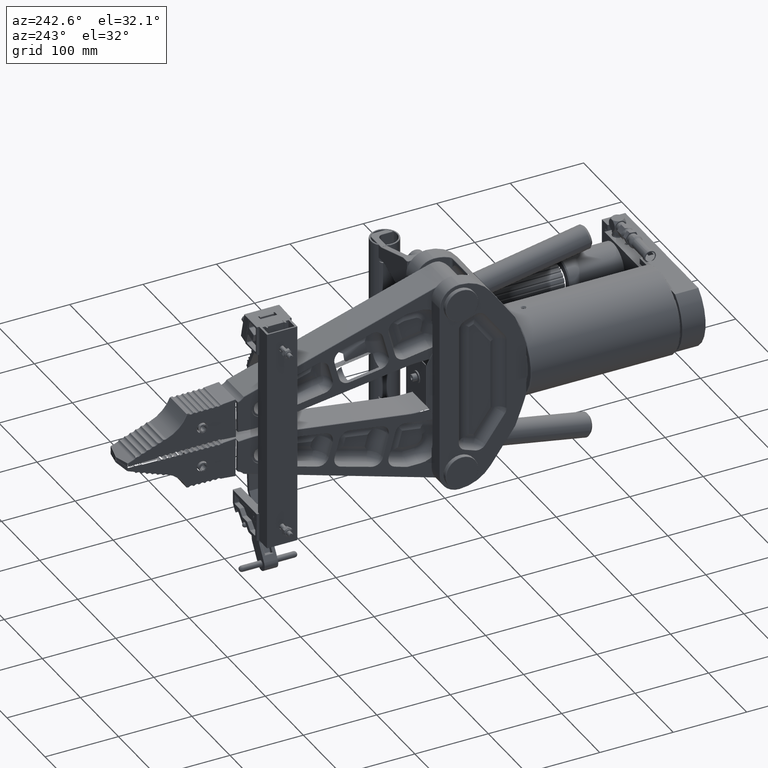
[diagram: clean part render]
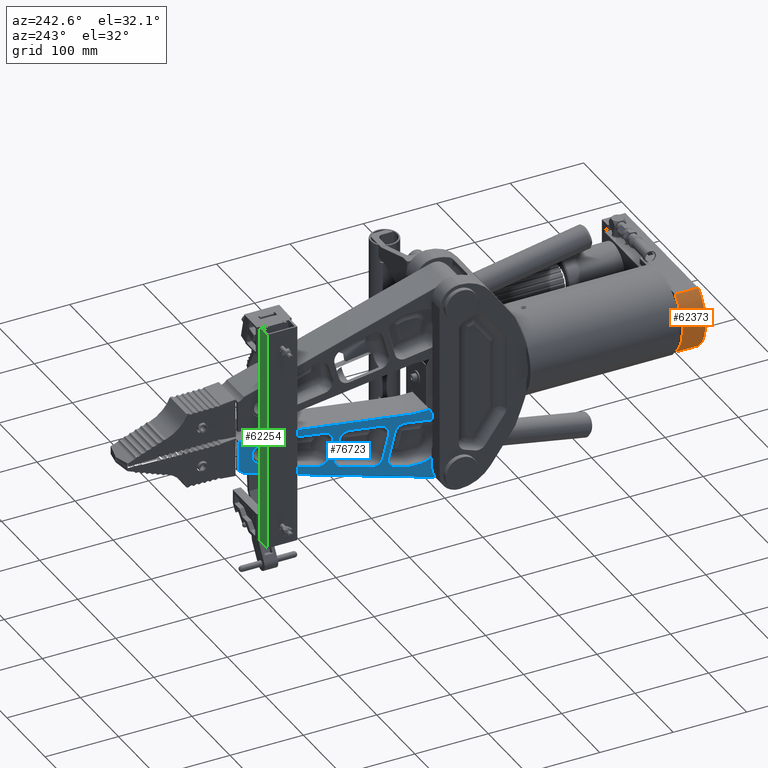
[diagram: same view with three faces highlighted in distinct colors, each labeled with its STEP entity id]
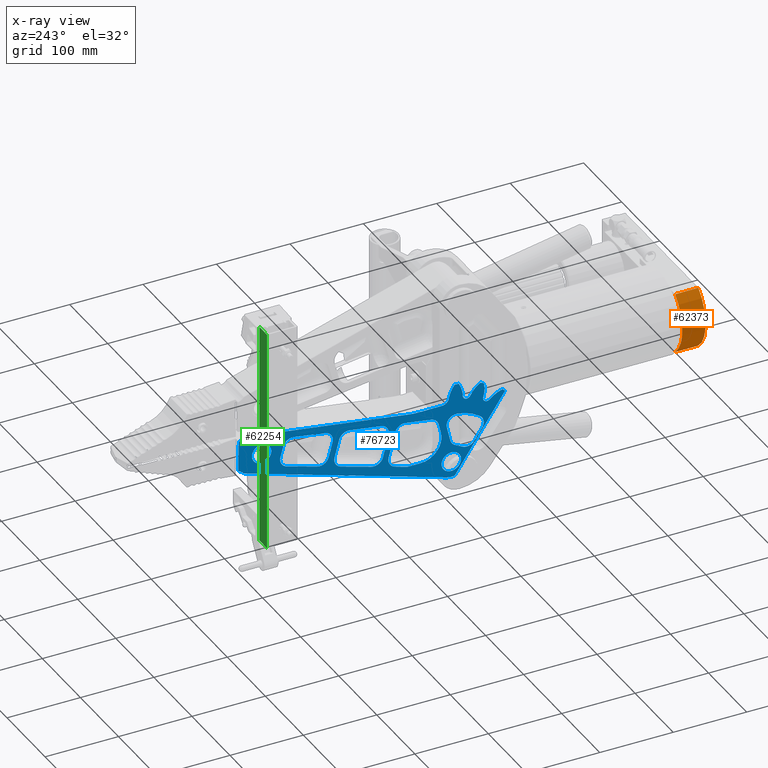
[diagram: x-ray of the same camera — body ghosted, the three highlighted faces saturated]
A machine part, auxiliary view with three faces highlighted in distinct colors.
The next image is the same camera in x-ray (body ghosted, the three faces saturated) — at least one of them is partly hidden behind the body in this view.
Their STEP definitions:

[orange] entity #62373 — the highlighted cylindrical surface (partial cylindrical patch) has radius 54.2413 mm, axis along (-0, -1, -0).
#13153 = LINE ( 'NONE', #15621, #13155 ) ;
#13155 = VECTOR ( 'NONE', #15622, 39.37007874015748100 ) ;
#13221 = CIRCLE ( 'NONE', #14673, 2.135483948496593500 ) ;
#13225 = LINE ( 'NONE', #15658, #13228 ) ;
#13228 = VECTOR ( 'NONE', #15659, 39.37007874015748100 ) ;
#13235 = CIRCLE ( 'NONE', #14676, 2.135483948496593500 ) ;
#14673 = AXIS2_PLACEMENT_3D ( 'NONE', #15643, #15651, #15652 ) ;
#14676 = AXIS2_PLACEMENT_3D ( 'NONE', #15660, #15661, #15662 ) ;
#15621 = CARTESIAN_POINT ( 'NONE',  ( -3.437499999999999600, 1.250000000000000000, -1.625000000000000200 ) ) ;
#15622 = DIRECTION ( 'NONE',  ( -0.0000000000000000000, -1.000000000000000000, -0.0000000000000000000 ) ) ;
#15643 = CARTESIAN_POINT ( 'NONE',  ( -2.051979630504624700, 1.250000000000000000, 5.463695987328526400E-016 ) ) ;
#15651 = DIRECTION ( 'NONE',  ( 0.0000000000000000000, 1.000000000000000000, 0.0000000000000000000 ) ) ;
#15652 = DIRECTION ( 'NONE',  ( 0.0000000000000000000, 0.0000000000000000000, 1.000000000000000000 ) ) ;
#15658 = CARTESIAN_POINT ( 'NONE',  ( -3.437500000000000900, 1.250000000000000000, 1.624999999999999100 ) ) ;
#15659 = DIRECTION ( 'NONE',  ( -0.0000000000000000000, -1.000000000000000000, -0.0000000000000000000 ) ) ;
#15660 = CARTESIAN_POINT ( 'NONE',  ( -2.051979630504624700, 0.0000000000000000000, 5.463695987328526400E-016 ) ) ;
#15661 = DIRECTION ( 'NONE',  ( 0.0000000000000000000, 1.000000000000000000, 0.0000000000000000000 ) ) ;
#15662 = DIRECTION ( 'NONE',  ( 0.0000000000000000000, 0.0000000000000000000, 1.000000000000000000 ) ) ;
#23509 = FACE_OUTER_BOUND ( 'NONE', #99170, .T. ) ;
#23516 = CYLINDRICAL_SURFACE ( 'NONE', #57611, 2.135483948496593500 ) ;
#51863 = CARTESIAN_POINT ( 'NONE',  ( -3.437499999999999600, 0.0000000000000000000, -1.625000000000000200 ) ) ;
#51865 = CARTESIAN_POINT ( 'NONE',  ( -3.437499999999999600, 1.250000000000000000, -1.625000000000000200 ) ) ;
#51869 = CARTESIAN_POINT ( 'NONE',  ( -3.437500000000000900, 0.0000000000000000000, 1.624999999999999100 ) ) ;
#51870 = CARTESIAN_POINT ( 'NONE',  ( -3.437500000000000900, 1.250000000000000000, 1.624999999999999100 ) ) ;
#56033 = DIRECTION ( 'NONE',  ( 0.0000000000000000000, 0.0000000000000000000, -1.000000000000000000 ) ) ;
#56037 = CARTESIAN_POINT ( 'NONE',  ( -2.051979630504624700, 1.250000000000000000, 5.463695987328526400E-016 ) ) ;
#56038 = DIRECTION ( 'NONE',  ( -0.0000000000000000000, -1.000000000000000000, -0.0000000000000000000 ) ) ;
#57611 = AXIS2_PLACEMENT_3D ( 'NONE', #56037, #56038, #56033 ) ;
#62373 = ADVANCED_FACE ( 'NONE', ( #23509 ), #23516, .T. ) ;
#85421 = EDGE_CURVE ( 'NONE', #101726, #101725, #13153, .T. ) ;
#85457 = EDGE_CURVE ( 'NONE', #101726, #101729, #13221, .T. ) ;
#85465 = EDGE_CURVE ( 'NONE', #101729, #101728, #13225, .T. ) ;
#85467 = EDGE_CURVE ( 'NONE', #101725, #101728, #13235, .T. ) ;
#88681 = ORIENTED_EDGE ( 'NONE', *, *, #85467, .T. ) ;
#88682 = ORIENTED_EDGE ( 'NONE', *, *, #85465, .F. ) ;
#88683 = ORIENTED_EDGE ( 'NONE', *, *, #85457, .F. ) ;
#88684 = ORIENTED_EDGE ( 'NONE', *, *, #85421, .T. ) ;
#99170 = EDGE_LOOP ( 'NONE', ( #88681, #88682, #88683, #88684 ) ) ;
#101725 = VERTEX_POINT ( 'NONE', #51863 ) ;
#101726 = VERTEX_POINT ( 'NONE', #51865 ) ;
#101728 = VERTEX_POINT ( 'NONE', #51869 ) ;
#101729 = VERTEX_POINT ( 'NONE', #51870 ) ;

[blue] entity #76723 — the highlighted planar face has unit normal (-1, 0, 0).
#2077 = CARTESIAN_POINT ( 'NONE',  ( -0.8860000000000096700, 10.41704320515888900, -1.629455447424948100 ) ) ;
#2083 = DIRECTION ( 'NONE',  ( 1.000000000000000000, -8.165371143497487400E-016, 4.585178834513534200E-016 ) ) ;
#2084 = DIRECTION ( 'NONE',  ( 8.195543980992785700E-016, 0.9999837526719138600, -0.005700385267379454200 ) ) ;
#2140 = CARTESIAN_POINT ( 'NONE',  ( -0.8860000000000104500, 12.39499562448233800, -2.406456614820206200 ) ) ;
#2146 = CARTESIAN_POINT ( 'NONE',  ( -0.8860000000000104500, 10.14265521364477300, -2.537094819704955700 ) ) ;
#2147 = DIRECTION ( 'NONE',  ( 3.548581005260366700E-016, -0.2588756287839597000, 0.9659106629609745000 ) ) ;
#2150 = DIRECTION ( 'NONE',  ( -1.040553004684048900E-016, -0.9590506295913239200, -0.2832346904609054900 ) ) ;
#2151 = CARTESIAN_POINT ( 'NONE',  ( -0.8860000000000104500, 10.62561054512526000, -2.407657005312974900 ) ) ;
#2152 = DIRECTION ( 'NONE',  ( -1.000000000000000000, 3.465903527919270300E-030, 3.673819061467125900E-016 ) ) ;
#2153 = DIRECTION ( 'NONE',  ( 0.0000000000000000000, -0.9999837526719138600, 0.005700385267379454200 ) ) ;
#2159 = CARTESIAN_POINT ( 'NONE',  ( -0.8860000000000103300, 12.25337733199813100, -1.926928092563231100 ) ) ;
#2160 = DIRECTION ( 'NONE',  ( -1.000000000000000000, 3.465903527919270300E-030, 3.673819061467125900E-016 ) ) ;
#2161 = DIRECTION ( 'NONE',  ( 0.0000000000000000000, -0.9999837526719137500, 0.005700385267379569500 ) ) ;
#2166 = CARTESIAN_POINT ( 'NONE',  ( -0.8860000000000100000, 12.58068690127753400, -1.231457179960419700 ) ) ;
#2170 = DIRECTION ( 'NONE',  ( -3.542314363509319200E-016, 0.2651582525308806000, -0.9642049061868384100 ) ) ;
#2205 = CARTESIAN_POINT ( 'NONE',  ( -0.8860000000000100000, 12.09858351559623400, -1.364036562689368500 ) ) ;
#2209 = DIRECTION ( 'NONE',  ( -1.000000000000000000, 3.465903527919270300E-030, 3.673819061467125900E-016 ) ) ;
#2210 = DIRECTION ( 'NONE',  ( 0.0000000000000000000, -0.9999837526719138600, 0.005700385267379107200 ) ) ;
#2222 = CARTESIAN_POINT ( 'NONE',  ( -0.8860000000000105600, 0.1745539631394053800, -2.740101702056419800 ) ) ;
#2231 = CARTESIAN_POINT ( 'NONE',  ( -0.8860000000000103300, 7.414298758362125600, -2.102346330432040700 ) ) ;
#2232 = DIRECTION ( 'NONE',  ( -1.000000000000000000, 3.465903527919270300E-030, 3.673819061467125900E-016 ) ) ;
#2233 = DIRECTION ( 'NONE',  ( 0.0000000000000000000, -0.9999837526719138600, 0.005700385267379454200 ) ) ;
#2235 = DIRECTION ( 'NONE',  ( 5.728344893127465100E-017, 0.9877691442210433400, 0.1559234354573665600 ) ) ;
#2242 = CARTESIAN_POINT ( 'NONE',  ( -0.8860000000000106700, 7.230755246549336800, -3.384760374024918100 ) ) ;
#2246 = DIRECTION ( 'NONE',  ( 3.555864809462139700E-016, -0.2513614604766806800, 0.9678932876030447200 ) ) ;
#2266 = CARTESIAN_POINT ( 'NONE',  ( -0.8860000000000106700, 7.714701890350862200, -3.259079643786577200 ) ) ;
#2267 = CARTESIAN_POINT ( 'NONE',  ( -0.8860000000000106700, 9.488688030411049500, -3.258046235212889400 ) ) ;
#2268 = DIRECTION ( 'NONE',  ( -1.000000000000000000, 3.465903527919270300E-030, 3.673819061467125900E-016 ) ) ;
#2269 = DIRECTION ( 'NONE',  ( 0.0000000000000000000, -0.9999837526719138600, 0.005700385267379429000 ) ) ;
#2275 = DIRECTION ( 'NONE',  ( -1.037523068507087600E-016, -0.9592938123652686700, -0.2824099530075178100 ) ) ;
#2299 = CARTESIAN_POINT ( 'NONE',  ( -0.8860000000000101100, 7.339435388786702300, -1.607982622322500900 ) ) ;
#2304 = DIRECTION ( 'NONE',  ( 5.500689483037336900E-017, 0.9887274162190780000, 0.1497267391508474400 ) ) ;
#2316 = CARTESIAN_POINT ( 'NONE',  ( -0.8860000000000101100, 9.100781983710156500, -1.846955785149524600 ) ) ;
#2317 = DIRECTION ( 'NONE',  ( 1.000000000000000000, -3.465903527919270300E-030, -3.673819061467125900E-016 ) ) ;
#2318 = DIRECTION ( 'NONE',  ( 0.0000000000000000000, 0.9999837526719139700, -0.005700385267379467200 ) ) ;
#2329 = CARTESIAN_POINT ( 'NONE',  ( -0.8860000000000105600, 9.347476531084817400, -2.778377172221784700 ) ) ;
#2330 = DIRECTION ( 'NONE',  ( -1.000000000000000000, 3.465903527919270300E-030, 3.673819061467125900E-016 ) ) ;
#2331 = DIRECTION ( 'NONE',  ( 0.0000000000000000000, -0.9999837526719138600, 0.005700385267379554800 ) ) ;
#2332 = CARTESIAN_POINT ( 'NONE',  ( -0.8860000000000101100, 9.584115363058007400, -1.718936863078639500 ) ) ;
#2335 = CARTESIAN_POINT ( 'NONE',  ( -0.8860000000000105600, 5.224370442037153100, -3.173466980917386800 ) ) ;
#2336 = DIRECTION ( 'NONE',  ( 1.000000000000000000, -3.465903527919270300E-030, -3.673819061467125900E-016 ) ) ;
#2337 = DIRECTION ( 'NONE',  ( 0.0000000000000000000, 0.9999837526719138600, -0.005700385267379092500 ) ) ;
#2339 = DIRECTION ( 'NONE',  ( -3.551343737978875200E-016, 0.2560532856645103500, -0.9666626686183803500 ) ) ;
#2342 = CARTESIAN_POINT ( 'NONE',  ( -0.8860000000000110000, 5.852947191558016900, -4.302068447318076100 ) ) ;
#2344 = DIRECTION ( 'NONE',  ( 2.094218405296982000E-018, -0.9999837526719138600, 0.005700385267379306700 ) ) ;
#2349 = CARTESIAN_POINT ( 'NONE',  ( -0.8860000000000101100, 4.736896754685052900, -2.516090829738059300 ) ) ;
#2355 = DIRECTION ( 'NONE',  ( 1.000000000000000000, -4.315645510953633200E-016, -3.649217819672807500E-016 ) ) ;
#2356 = DIRECTION ( 'NONE',  ( 5.463695987328517600E-016, 0.9999837526719138600, -0.005700385267379448100 ) ) ;
#2369 = CARTESIAN_POINT ( 'NONE',  ( -0.8860000000000160000, 6.023210846195133300, -1.809804727684291000 ) ) ;
#2370 = DIRECTION ( 'NONE',  ( 4.328895203578710000E-015, -0.9880966916352893500, -0.1538340923833074200 ) ) ;
#2415 = CARTESIAN_POINT ( 'NONE',  ( -0.8860000000000108900, 6.598951732809658700, -4.092396418954169100 ) ) ;
#2418 = CARTESIAN_POINT ( 'NONE',  ( -0.8860000000000106700, 5.855797384191706800, -3.802076570982118900 ) ) ;
#2419 = DIRECTION ( 'NONE',  ( -1.000000000000000000, 1.045040519042681500E-018, 5.507069782086362000E-016 ) ) ;
#2420 = DIRECTION ( 'NONE',  ( -5.463695987328525500E-016, -0.005700385267378363000, -0.9999837526719140800 ) ) ;
#2426 = CARTESIAN_POINT ( 'NONE',  ( -0.8860000000000110000, 6.448870838974283300, -3.615454286052743900 ) ) ;
#2427 = DIRECTION ( 'NONE',  ( -1.102744347426558900E-016, -0.9538879424165061000, -0.3001629446024348700 ) ) ;
#2429 = DIRECTION ( 'NONE',  ( -1.000000000000000000, 7.434802645742019300E-016, -9.671110136843914500E-018 ) ) ;
#2430 = DIRECTION ( 'NONE',  ( -8.195575569572243500E-016, -0.9999837526719138600, 0.005700385267378858300 ) ) ;
#2435 = CARTESIAN_POINT ( 'NONE',  ( -0.8860000000000101100, 6.584985137007483200, -2.175532903883917100 ) ) ;
#2439 = DIRECTION ( 'NONE',  ( -3.551534379076353800E-016, 0.2558573013771355800, -0.9667145604220562800 ) ) ;
#2458 = CARTESIAN_POINT ( 'NONE',  ( -0.8860000000000086700, 6.100128710583024200, -2.303858328884406800 ) ) ;
#2463 = DIRECTION ( 'NONE',  ( -1.000000000000000000, -3.281294629538398900E-015, -1.602942502634491100E-016 ) ) ;
#2464 = DIRECTION ( 'NONE',  ( 3.268081545471454600E-015, -0.9999837526719138600, 0.005700385267379162700 ) ) ;
#2745 = CARTESIAN_POINT ( 'NONE',  ( -0.8860000000000096700, 13.30184980943257700, -0.2986027694182549200 ) ) ;
#2747 = CARTESIAN_POINT ( 'NONE',  ( -0.8860000000000083400, 5.264722931397755300, 3.240993894944809400 ) ) ;
#2756 = DIRECTION ( 'NONE',  ( 1.000000000000000000, -3.465903527919270300E-030, -3.673819061467125900E-016 ) ) ;
#2757 = DIRECTION ( 'NONE',  ( 0.0000000000000000000, -0.9999837526719137500, 0.005700385267381956500 ) ) ;
#2759 = DIRECTION ( 'NONE',  ( 5.265628442878603900E-017, 0.9896751746478489300, 0.1433284643249537700 ) ) ;
#2768 = CARTESIAN_POINT ( 'NONE',  ( -0.8860000000000112200, 3.574499999999998700, -4.687500000000001800 ) ) ;
#2769 = DIRECTION ( 'NONE',  ( -1.000000000000000000, 3.465903527919270300E-030, 3.673819061467125900E-016 ) ) ;
#2770 = DIRECTION ( 'NONE',  ( 0.0000000000000000000, -0.9999837526719138600, 0.005700385267379143700 ) ) ;
#2773 = CARTESIAN_POINT ( 'NONE',  ( -0.8860000000000105600, 0.4628618356658137900, -2.897090056797513700 ) ) ;
#2774 = DIRECTION ( 'NONE',  ( -1.000000000000000000, 3.465903527919270300E-030, 3.673819061467125900E-016 ) ) ;
#2775 = DIRECTION ( 'NONE',  ( 0.0000000000000000000, -0.9999837526719137500, 0.005700385267379400400 ) ) ;
#2776 = CARTESIAN_POINT ( 'NONE',  ( -0.8860000000000096700, 14.98911995810388700, -0.2822334162787391600 ) ) ;
#2779 = CARTESIAN_POINT ( 'NONE',  ( -0.8860000000000117800, 14.15895402609580400, -6.216860313812392600 ) ) ;
#2780 = DIRECTION ( 'NONE',  ( -1.000000000000000000, 3.465903527919270300E-030, 3.673819061467125900E-016 ) ) ;
#2781 = DIRECTION ( 'NONE',  ( 0.0000000000000000000, -0.9999837526719138600, 0.005700385267379271200 ) ) ;
#2784 = CARTESIAN_POINT ( 'NONE',  ( -0.8860000000000103300, 14.99043899557910600, -1.949414393684547800 ) ) ;
#2785 = DIRECTION ( 'NONE',  ( -2.738704281701716500E-017, 0.9972175370868592300, -0.07454652055205929200 ) ) ;
#2789 = CARTESIAN_POINT ( 'NONE',  ( -0.8860000000000112200, 3.574499999999998700, -4.687500000000001800 ) ) ;
#2790 = DIRECTION ( 'NONE',  ( -3.673565331884714500E-016, 0.01175260581121532000, -0.9999309357433873200 ) ) ;
#2791 = CARTESIAN_POINT ( 'NONE',  ( -0.8860000000000104500, 15.19689781919129100, -2.545717347054689700 ) ) ;
#2796 = DIRECTION ( 'NONE',  ( 1.000000000000000000, -3.465903527919270300E-030, -3.673819061467125900E-016 ) ) ;
#2797 = DIRECTION ( 'NONE',  ( 0.0000000000000000000, -0.9999837526719139700, 0.005700385267372075500 ) ) ;
#2798 = CARTESIAN_POINT ( 'NONE',  ( -0.8860000000000115600, 3.826196951115806900, -5.502520027237988400 ) ) ;
#2799 = CARTESIAN_POINT ( 'NONE',  ( -0.8860000000000112200, 3.574499999999998700, -4.687500000000001800 ) ) ;
#2930 = LINE ( 'NONE', #2140, #2949 ) ;
#2932 = CIRCLE ( 'NONE', #88297, 0.5000000000000002200 ) ;
#2945 = LINE ( 'NONE', #2146, #2946 ) ;
#2946 = VECTOR ( 'NONE', #2147, 39.37007874015748900 ) ;
#2949 = VECTOR ( 'NONE', #2150, 39.37007874015748900 ) ;
#2953 = CIRCLE ( 'NONE', #88300, 0.5000000000000002200 ) ;
#2956 = LINE ( 'NONE', #2166, #2964 ) ;
#2959 = CIRCLE ( 'NONE', #88301, 0.5000033444129163800 ) ;
#2964 = VECTOR ( 'NONE', #2170, 39.37007874015748100 ) ;
#2972 = LINE ( 'NONE', #2242, #2995 ) ;
#2974 = VECTOR ( 'NONE', #2235, 39.37007874015748900 ) ;
#2976 = CIRCLE ( 'NONE', #88306, 0.5000009672092294900 ) ;
#2987 = LINE ( 'NONE', #2222, #2974 ) ;
#2988 = CIRCLE ( 'NONE', #88312, 0.5000000000000002200 ) ;
#2995 = VECTOR ( 'NONE', #2246, 39.37007874015748100 ) ;
#3006 = VECTOR ( 'NONE', #2275, 39.37007874015748900 ) ;
#3008 = CIRCLE ( 'NONE', #88317, 0.5000000000000024400 ) ;
#3009 = LINE ( 'NONE', #2299, #3020 ) ;
#3010 = LINE ( 'NONE', #2267, #3006 ) ;
#3020 = VECTOR ( 'NONE', #2304, 39.37007874015748900 ) ;
#3031 = CIRCLE ( 'NONE', #88321, 0.4999999999999991100 ) ;
#3037 = VECTOR ( 'NONE', #2339, 39.37007874015748900 ) ;
#3038 = CIRCLE ( 'NONE', #88322, 0.5000230969992558400 ) ;
#3039 = LINE ( 'NONE', #2342, #3047 ) ;
#3041 = LINE ( 'NONE', #2332, #3037 ) ;
#3042 = CIRCLE ( 'NONE', #88326, 1.125000000000000000 ) ;
#3047 = VECTOR ( 'NONE', #2344, 39.37007874015748900 ) ;
#3055 = CIRCLE ( 'NONE', #88329, 0.5000000000000007800 ) ;
#3062 = LINE ( 'NONE', #2369, #3063 ) ;
#3063 = VECTOR ( 'NONE', #2370, 39.37007874015748900 ) ;
#3085 = LINE ( 'NONE', #2435, #3098 ) ;
#3086 = LINE ( 'NONE', #2415, #3090 ) ;
#3087 = CIRCLE ( 'NONE', #88338, 0.5000000000000001100 ) ;
#3090 = VECTOR ( 'NONE', #2427, 39.37007874015748100 ) ;
#3094 = CIRCLE ( 'NONE', #88340, 0.4999980728272721600 ) ;
#3098 = VECTOR ( 'NONE', #2439, 39.37007874015748900 ) ;
#3104 = CIRCLE ( 'NONE', #88342, 0.5015507640774304900 ) ;
#3205 = VECTOR ( 'NONE', #2759, 39.37007874015748100 ) ;
#3214 = LINE ( 'NONE', #2745, #3205 ) ;
#3215 = CIRCLE ( 'NONE', #88365, 4.655000000000001100 ) ;
#3224 = CIRCLE ( 'NONE', #88357, 0.8529999999999994300 ) ;
#3227 = CIRCLE ( 'NONE', #88369, 1.534560999999999800 ) ;
#3228 = LINE ( 'NONE', #2784, #3234 ) ;
#3229 = LINE ( 'NONE', #2776, #3231 ) ;
#3230 = CIRCLE ( 'NONE', #88370, 5.979999999999999500 ) ;
#3231 = VECTOR ( 'NONE', #2785, 39.37007874015748900 ) ;
#3234 = VECTOR ( 'NONE', #2790, 39.37007874015748900 ) ;
#3235 = VECTOR ( 'NONE', #5933, 39.37007874015748900 ) ;
#3236 = LINE ( 'NONE', #2798, #3235 ) ;
#3237 = CIRCLE ( 'NONE', #88368, 0.6450000000000003500 ) ;
#3240 = VECTOR ( 'NONE', #5949, 39.37007874015748900 ) ;
#3241 = CIRCLE ( 'NONE', #88373, 4.277999999999999600 ) ;
#3242 = CIRCLE ( 'NONE', #88374, 0.5210000000000000200 ) ;
#3243 = CIRCLE ( 'NONE', #88371, 0.5210000000000000200 ) ;
#3244 = LINE ( 'NONE', #5942, #3240 ) ;
#3245 = CIRCLE ( 'NONE', #88375, 0.5200000000000031300 ) ;
#3246 = CIRCLE ( 'NONE', #88377, 0.08200000000000311200 ) ;
#3247 = CIRCLE ( 'NONE', #88372, 0.2075000000000005200 ) ;
#3248 = CIRCLE ( 'NONE', #88378, 0.08200000000000040600 ) ;
#3249 = CIRCLE ( 'NONE', #88379, 1.534560999999999800 ) ;
#3250 = CIRCLE ( 'NONE', #88380, 4.277999999999999600 ) ;
#3251 = CIRCLE ( 'NONE', #88381, 1.534560999999999800 ) ;
#3252 = CIRCLE ( 'NONE', #88382, 0.08200000000000311200 ) ;
#3253 = CIRCLE ( 'NONE', #88383, 0.2074999999999999600 ) ;
#3254 = LINE ( 'NONE', #5988, #3260 ) ;
#3255 = CIRCLE ( 'NONE', #88384, 0.08200000000000039200 ) ;
#3256 = LINE ( 'NONE', #6007, #3269 ) ;
#3257 = CIRCLE ( 'NONE', #88385, 1.534560999999999800 ) ;
#3258 = VECTOR ( 'NONE', #5998, 39.37007874015748900 ) ;
#3259 = CIRCLE ( 'NONE', #88386, 4.277999999999999600 ) ;
#3260 = VECTOR ( 'NONE', #5989, 39.37007874015748900 ) ;
#3261 = CIRCLE ( 'NONE', #88387, 1.534560999999999800 ) ;
#3262 = CIRCLE ( 'NONE', #88388, 0.3950000000000003000 ) ;
#3263 = LINE ( 'NONE', #5997, #3258 ) ;
#3264 = CIRCLE ( 'NONE', #88390, 0.5000000000000002200 ) ;
#3265 = CIRCLE ( 'NONE', #88376, 0.4999983095644903200 ) ;
#3266 = LINE ( 'NONE', #5999, #3267 ) ;
#3267 = VECTOR ( 'NONE', #6000, 39.37007874015748100 ) ;
#3268 = LINE ( 'NONE', #6011, #3271 ) ;
#3269 = VECTOR ( 'NONE', #6008, 39.37007874015748100 ) ;
#3270 = CIRCLE ( 'NONE', #88391, 2.595000000000001100 ) ;
#3271 = VECTOR ( 'NONE', #6012, 39.37007874015748900 ) ;
#3272 = CIRCLE ( 'NONE', #88392, 0.4999999999999903400 ) ;
#3274 = CIRCLE ( 'NONE', #88394, 0.4999987634587453900 ) ;
#3275 = LINE ( 'NONE', #6013, #3276 ) ;
#3276 = VECTOR ( 'NONE', #6014, 39.37007874015748900 ) ;
#5933 = DIRECTION ( 'NONE',  ( -1.084043442816460200E-016, -0.9554748267737229700, -0.2950726273338890000 ) ) ;
#5936 = DIRECTION ( 'NONE',  ( -1.000000000000000000, 3.465903527919270300E-030, 3.673819061467125900E-016 ) ) ;
#5937 = DIRECTION ( 'NONE',  ( 0.0000000000000000000, -0.9999837526719138600, 0.005700385267379246900 ) ) ;
#5938 = CARTESIAN_POINT ( 'NONE',  ( -0.8860000000000100000, 13.74392731378390800, -1.308414752530533900 ) ) ;
#5939 = DIRECTION ( 'NONE',  ( 1.000000000000000000, -3.465903527919270300E-030, -3.673819061467125900E-016 ) ) ;
#5940 = DIRECTION ( 'NONE',  ( 0.0000000000000000000, -0.9999837526719137500, 0.005700385267379081200 ) ) ;
#5941 = CARTESIAN_POINT ( 'NONE',  ( -0.8860000000000112200, 3.574499999999998700, -4.687500000000001800 ) ) ;
#5942 = CARTESIAN_POINT ( 'NONE',  ( -0.8860000000000171100, 7.990809163513217700, -12.32432088430591000 ) ) ;
#5943 = DIRECTION ( 'NONE',  ( 1.000000000000000000, -3.465903527919270300E-030, -3.673819061467125900E-016 ) ) ;
#5944 = DIRECTION ( 'NONE',  ( 0.0000000000000000000, -0.9999837526719137500, 0.005700385267379081200 ) ) ;
#5945 = CARTESIAN_POINT ( 'NONE',  ( -0.8860000000000101100, 1.658491663312799300, -1.627332961463517500 ) ) ;
#5946 = DIRECTION ( 'NONE',  ( 1.000000000000000000, -3.465903527919270300E-030, -3.673819061467125900E-016 ) ) ;
#5947 = DIRECTION ( 'NONE',  ( 0.0000000000000000000, -0.9999837526719138600, 0.005700385267379989300 ) ) ;
#5948 = CARTESIAN_POINT ( 'NONE',  ( -0.8860000000000101100, 1.584609295362508800, -1.733065957654798700 ) ) ;
#5949 = DIRECTION ( 'NONE',  ( 5.185670463346929000E-016, -0.5604950936232989700, 0.8281577446502624800 ) ) ;
#5950 = CARTESIAN_POINT ( 'NONE',  ( -0.8860000000000101100, 1.785875715334432700, -1.607050587174502000 ) ) ;
#5951 = DIRECTION ( 'NONE',  ( 1.000000000000000000, -3.465903527919270300E-030, -3.673819061467125900E-016 ) ) ;
#5952 = DIRECTION ( 'NONE',  ( 0.0000000000000000000, -0.9999837526719139700, 0.005700385267381665900 ) ) ;
#5953 = CARTESIAN_POINT ( 'NONE',  ( -0.8860000000000098900, 3.322943139596565800, -1.106357867042512300 ) ) ;
#5954 = DIRECTION ( 'NONE',  ( 1.000000000000000000, -3.465903527919270300E-030, -3.673819061467125900E-016 ) ) ;
#5955 = DIRECTION ( 'NONE',  ( 0.0000000000000000000, -0.9999837526719138600, 0.005700385267380534900 ) ) ;
#5956 = CARTESIAN_POINT ( 'NONE',  ( -0.8860000000000112200, 3.574499999999998700, -4.687500000000001800 ) ) ;
#5957 = DIRECTION ( 'NONE',  ( 1.000000000000000000, -3.465903527919270300E-030, -3.673819061467125900E-016 ) ) ;
#5958 = DIRECTION ( 'NONE',  ( 0.0000000000000000000, -0.9999837526719137500, 0.005700385267385185700 ) ) ;
#5959 = CARTESIAN_POINT ( 'NONE',  ( -0.8860000000000103300, 1.203504484921589500, -1.991903572873452200 ) ) ;
#5960 = DIRECTION ( 'NONE',  ( -1.000000000000000000, 3.465903527919270300E-030, 3.673819061467125900E-016 ) ) ;
#5961 = DIRECTION ( 'NONE',  ( 0.0000000000000000000, -0.9999837526719137500, 0.005700385267379311100 ) ) ;
#5962 = CARTESIAN_POINT ( 'NONE',  ( -0.8860000000000100000, 2.639884236221415700, -1.250227985586903200 ) ) ;
#5963 = DIRECTION ( 'NONE',  ( -1.000000000000000000, 3.465903527919270300E-030, 3.673819061467125900E-016 ) ) ;
#5964 = DIRECTION ( 'NONE',  ( 0.0000000000000000000, -0.9999837526719138600, 0.005700385267379246900 ) ) ;
#5965 = CARTESIAN_POINT ( 'NONE',  ( -0.8860000000000100000, 2.743832434232616400, -1.173854934660861100 ) ) ;
#5966 = DIRECTION ( 'NONE',  ( -1.000000000000000000, 3.465903527919270300E-030, 3.673819061467125900E-016 ) ) ;
#5967 = DIRECTION ( 'NONE',  ( 0.0000000000000000000, -0.9999837526719137500, 0.005700385267379222600 ) ) ;
#5968 = CARTESIAN_POINT ( 'NONE',  ( -0.8860000000000100000, 2.870975786655612700, -1.195595204918878900 ) ) ;
#5969 = DIRECTION ( 'NONE',  ( 1.000000000000000000, -3.465903527919270300E-030, -3.673819061467125900E-016 ) ) ;
#5970 = DIRECTION ( 'NONE',  ( 0.0000000000000000000, -0.9999837526719139700, 0.005700385267381665900 ) ) ;
#5971 = CARTESIAN_POINT ( 'NONE',  ( -0.8860000000000100000, 4.487413641995275700, -1.215548313596766200 ) ) ;
#5972 = DIRECTION ( 'NONE',  ( 1.000000000000000000, -3.465903527919270300E-030, -3.673819061467125900E-016 ) ) ;
#5973 = DIRECTION ( 'NONE',  ( 0.0000000000000000000, -0.9999837526719138600, 0.005700385267377258900 ) ) ;
#5974 = CARTESIAN_POINT ( 'NONE',  ( -0.8860000000000112200, 3.574499999999998700, -4.687500000000001800 ) ) ;
#5975 = DIRECTION ( 'NONE',  ( 1.000000000000000000, -3.465903527919270300E-030, -3.673819061467125900E-016 ) ) ;
#5976 = DIRECTION ( 'NONE',  ( 0.0000000000000000000, -0.9999837526719139700, 0.005700385267378523500 ) ) ;
#5977 = CARTESIAN_POINT ( 'NONE',  ( -0.8860000000000100000, 2.195803984083159600, -1.372826995591515300 ) ) ;
#5978 = DIRECTION ( 'NONE',  ( -1.000000000000000000, 3.465903527919270300E-030, 3.673819061467125900E-016 ) ) ;
#5979 = DIRECTION ( 'NONE',  ( 0.0000000000000000000, -0.9999837526719139700, 0.005700385267379311100 ) ) ;
#5980 = CARTESIAN_POINT ( 'NONE',  ( -0.8860000000000098900, 4.083458088317313700, -1.012341545683183700 ) ) ;
#5981 = DIRECTION ( 'NONE',  ( -1.000000000000000000, 3.465903527919270300E-030, 3.673819061467125900E-016 ) ) ;
#5982 = DIRECTION ( 'NONE',  ( 0.0000000000000000000, -0.9999837526719138600, 0.005700385267379246900 ) ) ;
#5983 = CARTESIAN_POINT ( 'NONE',  ( -0.8860000000000104500, 3.324514968558325700, -2.579040732180224900 ) ) ;
#5984 = DIRECTION ( 'NONE',  ( -1.000000000000000000, 3.465903527919270300E-030, 3.673819061467125900E-016 ) ) ;
#5985 = DIRECTION ( 'NONE',  ( 0.0000000000000000000, -0.9999837526719137500, 0.005700385267379222600 ) ) ;
#5986 = DIRECTION ( 'NONE',  ( 1.000000000000000000, -3.465903527919270300E-030, -3.673819061467125900E-016 ) ) ;
#5987 = DIRECTION ( 'NONE',  ( 0.0000000000000000000, -0.9999837526719139700, 0.005700385267379161900 ) ) ;
#5988 = CARTESIAN_POINT ( 'NONE',  ( -0.8860000000000100000, 5.238187637978104900, -1.413930473742948300 ) ) ;
#5989 = DIRECTION ( 'NONE',  ( -2.094218405296982000E-018, 0.9999837526719138600, -0.005700385267379306700 ) ) ;
#5990 = CARTESIAN_POINT ( 'NONE',  ( -0.8860000000000112200, 3.571727592763242600, -4.659403902021905400 ) ) ;
#5991 = DIRECTION ( 'NONE',  ( 1.000000000000000000, -3.465903527919270300E-030, -3.673819061467125900E-016 ) ) ;
#5992 = DIRECTION ( 'NONE',  ( 0.0000000000000000000, 0.9999837526719138600, -0.005700385267379454200 ) ) ;
#5993 = CARTESIAN_POINT ( 'NONE',  ( -0.8860000000000106700, 3.140060191798291100, -3.360001957421533600 ) ) ;
#5994 = CARTESIAN_POINT ( 'NONE',  ( -0.8860000000000197700, 2.332268000461976200, -2.970390900576263000 ) ) ;
#5995 = DIRECTION ( 'NONE',  ( 1.000000000000000000, -3.465903527919270300E-030, -3.673819061467125900E-016 ) ) ;
#5996 = DIRECTION ( 'NONE',  ( 0.0000000000000000000, 0.9999837526719138600, -0.005700385267379297200 ) ) ;
#5997 = CARTESIAN_POINT ( 'NONE',  ( -0.8860000000000110000, 3.374269238684180400, -3.801753507417854100 ) ) ;
#5998 = DIRECTION ( 'NONE',  ( -1.720872932450940100E-016, -0.8835084259337777600, -0.4684152658742223900 ) ) ;
#5999 = CARTESIAN_POINT ( 'NONE',  ( -0.8860000000000108900, 3.626669582206529800, -3.474935028092554800 ) ) ;
#6000 = DIRECTION ( 'NONE',  ( 3.610726307495986900E-016, 0.2298669184924438100, 0.9732220711547741000 ) ) ;
#6001 = CARTESIAN_POINT ( 'NONE',  ( -0.8860000000000175500, 2.738841107897076900, -3.572718310139019000 ) ) ;
#6002 = DIRECTION ( 'NONE',  ( 1.000000000000000000, -3.465903527919270300E-030, -3.673819061467125900E-016 ) ) ;
#6003 = DIRECTION ( 'NONE',  ( 0.0000000000000000000, 0.9999837526719138600, -0.005700385267379283300 ) ) ;
#6005 = DIRECTION ( 'NONE',  ( -1.000000000000000000, -1.064866103640459200E-014, 1.506322211083181000E-014 ) ) ;
#6006 = DIRECTION ( 'NONE',  ( -1.502516396515373900E-014, -0.005700385267379566900, -0.9999837526719139700 ) ) ;
#6007 = CARTESIAN_POINT ( 'NONE',  ( -0.8860000000000239900, 2.324418943681870500, -3.852455746438594500 ) ) ;
#6008 = DIRECTION ( 'NONE',  ( 1.832985111581487000E-014, -0.5594762562300944500, 0.8288463782358934700 ) ) ;
#6009 = DIRECTION ( 'NONE',  ( -1.000000000000000000, 1.237464427652083400E-016, 2.207546415179464600E-014 ) ) ;
#6010 = DIRECTION ( 'NONE',  ( -2.212802347310834900E-014, -0.005700385267379102000, -0.9999837526719139700 ) ) ;
#6011 = CARTESIAN_POINT ( 'NONE',  ( -0.8860000000000104500, 4.129236998592995500, -2.915964085690670800 ) ) ;
#6012 = DIRECTION ( 'NONE',  ( 3.576286328333589200E-016, 0.2288914624237472200, 0.9734519497281406400 ) ) ;
#6013 = CARTESIAN_POINT ( 'NONE',  ( -0.8860000000000104500, 6.100128710583024200, -2.303858328884406800 ) ) ;
#6014 = DIRECTION ( 'NONE',  ( 3.925825759297963600E-015, -0.1538376537935923500, 0.9880961371624132900 ) ) ;
#15235 = AXIS2_PLACEMENT_3D ( 'NONE', #29975, #29982, #29983 ) ;
#27214 = CARTESIAN_POINT ( 'NONE',  ( -0.8860000000000100000, 14.26391886517330400, -1.311378952869571200 ) ) ;
#27216 = CARTESIAN_POINT ( 'NONE',  ( -0.8860000000000100000, 13.22393576239451300, -1.305450552191496300 ) ) ;
#27233 = CARTESIAN_POINT ( 'NONE',  ( -0.8860000000000103300, 6.914306882026168400, -2.099496137798351200 ) ) ;
#27235 = CARTESIAN_POINT ( 'NONE',  ( -0.8860000000000101100, 7.339435388786702300, -1.607982622322500200 ) ) ;
#27460 = CARTESIAN_POINT ( 'NONE',  ( -0.8860000000000097800, 10.34327386562461200, -1.134927304095696400 ) ) ;
#27463 = CARTESIAN_POINT ( 'NONE',  ( -0.8860000000000101100, 9.934087873678404200, -1.758893261816926000 ) ) ;
#27465 = CARTESIAN_POINT ( 'NONE',  ( -0.8860000000000104500, 10.14265521364477300, -2.537094819704954800 ) ) ;
#27468 = CARTESIAN_POINT ( 'NONE',  ( -0.8860000000000105600, 10.76722789035571600, -2.887182320108637500 ) ) ;
#27473 = CARTESIAN_POINT ( 'NONE',  ( -0.8860000000000104500, 12.39499562448234100, -2.406456614820205800 ) ) ;
#27475 = CARTESIAN_POINT ( 'NONE',  ( -0.8860000000000101100, 12.73548300979089600, -1.794348079499105400 ) ) ;
#27483 = CARTESIAN_POINT ( 'NONE',  ( -0.8860000000000100000, 12.58068690127753400, -1.231457179960418600 ) ) ;
#27505 = CARTESIAN_POINT ( 'NONE',  ( -0.8860000000000098900, 12.02062164705696300, -0.8701510351994125000 ) ) ;
#27511 = CARTESIAN_POINT ( 'NONE',  ( -0.8860000000000103300, 6.930352114560602000, -2.228027060670380700 ) ) ;
#27515 = CARTESIAN_POINT ( 'NONE',  ( -0.8860000000000106700, 7.230755246549337700, -3.384760374024918100 ) ) ;
#27525 = CARTESIAN_POINT ( 'NONE',  ( -0.8860000000000108900, 7.855906866854623700, -3.738726549969212200 ) ) ;
#27529 = CARTESIAN_POINT ( 'NONE',  ( -0.8860000000000106700, 9.488688030411051200, -3.258046235212888900 ) ) ;
#27541 = CARTESIAN_POINT ( 'NONE',  ( -0.8860000000000100000, 9.025918614134731400, -1.352592077039984600 ) ) ;
#27543 = CARTESIAN_POINT ( 'NONE',  ( -0.8860000000000101100, 9.584115363058007400, -1.718936863078639500 ) ) ;
#27549 = CARTESIAN_POINT ( 'NONE',  ( -0.8860000000000105600, 9.830832237439604900, -2.650352336088351200 ) ) ;
#27551 = CARTESIAN_POINT ( 'NONE',  ( -0.8860000000000110000, 5.217957508611352300, -4.298448702673290700 ) ) ;
#27557 = CARTESIAN_POINT ( 'NONE',  ( -0.8860000000000110000, 5.852947191558016900, -4.302068447318076100 ) ) ;
#27561 = CARTESIAN_POINT ( 'NONE',  ( -0.8860000000000104500, 4.129236998592995500, -2.915964085690670800 ) ) ;
#27567 = CARTESIAN_POINT ( 'NONE',  ( -0.8860000000000122200, 6.023209065470551200, -1.809805004920467900 ) ) ;
#27571 = CARTESIAN_POINT ( 'NONE',  ( -0.8860000000000101100, 4.659979708493395400, -2.022042483920414300 ) ) ;
#27575 = CARTESIAN_POINT ( 'NONE',  ( -0.8860000000000103300, 4.250170779820981800, -2.401645098526185200 ) ) ;
#27591 = CARTESIAN_POINT ( 'NONE',  ( -0.8860000000000110000, 6.005878856492925500, -4.279020542190371800 ) ) ;
#27595 = CARTESIAN_POINT ( 'NONE',  ( -0.8860000000000108900, 6.598951732809659600, -4.092396418954168200 ) ) ;
#27597 = CARTESIAN_POINT ( 'NONE',  ( -0.8860000000000106700, 6.932226256159374600, -3.487526128445389300 ) ) ;
#27603 = CARTESIAN_POINT ( 'NONE',  ( -0.8860000000000101100, 6.584985137007483200, -2.175532903883915300 ) ) ;
#27611 = CARTESIAN_POINT ( 'NONE',  ( -0.8860000000000083400, 6.022971317778968500, -1.808277956308640000 ) ) ;
#27719 = CARTESIAN_POINT ( 'NONE',  ( -0.8860000000000100000, 5.238187637978104900, -1.413930473742948800 ) ) ;
#27720 = CARTESIAN_POINT ( 'NONE',  ( -0.8860000000000100000, 5.931916932830414900, -1.365944043040928900 ) ) ;
#27721 = CARTESIAN_POINT ( 'NONE',  ( -0.8860000000000096700, 13.30184980943257700, -0.2986027694182549200 ) ) ;
#27722 = CARTESIAN_POINT ( 'NONE',  ( -0.8860000000000096700, 14.60474221899711500, -0.2534994420329759200 ) ) ;
#27723 = CARTESIAN_POINT ( 'NONE',  ( -0.8860000000000096700, 14.97082784958370800, -0.2808659984455919600 ) ) ;
#27724 = CARTESIAN_POINT ( 'NONE',  ( -0.8860000000000103300, 14.99026618419247100, -1.934711318101033800 ) ) ;
#27725 = CARTESIAN_POINT ( 'NONE',  ( -0.8860000000000103300, 14.68931766733463500, -2.147738215137985600 ) ) ;
#27726 = CARTESIAN_POINT ( 'NONE',  ( -0.8860000000000115600, 3.826196951115806900, -5.502520027237988400 ) ) ;
#27727 = CARTESIAN_POINT ( 'NONE',  ( -0.8860000000000112200, 3.053508464857931600, -4.684530099275697500 ) ) ;
#27728 = CARTESIAN_POINT ( 'NONE',  ( -0.8860000000000112200, 4.095491535142065800, -4.690469900724306000 ) ) ;
#27729 = CARTESIAN_POINT ( 'NONE',  ( -0.8860000000000127800, 3.385129699572077200, -5.519213826574884700 ) ) ;
#27730 = CARTESIAN_POINT ( 'NONE',  ( -0.8860000000000103300, 0.6863219167571976700, -1.531598962344361800 ) ) ;
#27731 = CARTESIAN_POINT ( 'NONE',  ( -0.8860000000000100000, 0.8288819378497801500, -1.406819360743191100 ) ) ;
#27732 = CARTESIAN_POINT ( 'NONE',  ( -0.8860000000000101100, 1.527708694831426700, -1.792111039238303700 ) ) ;
#27733 = CARTESIAN_POINT ( 'NONE',  ( -0.8860000000000101100, 1.565420455286537400, -1.812789156389792900 ) ) ;
#27734 = CARTESIAN_POINT ( 'NONE',  ( -0.8860000000000101100, 1.865973783698136500, -1.624609045090944300 ) ) ;
#27735 = CARTESIAN_POINT ( 'NONE',  ( -0.8860000000000101100, 1.863843406494553000, -1.581652966515075100 ) ) ;
#27736 = CARTESIAN_POINT ( 'NONE',  ( -0.8860000000000098900, 1.822466942988870900, -0.7847235309794866600 ) ) ;
#27737 = CARTESIAN_POINT ( 'NONE',  ( -0.8860000000000097800, 2.029131763377138000, -0.6983746556121942500 ) ) ;
#27738 = CARTESIAN_POINT ( 'NONE',  ( -0.8860000000000100000, 2.567023923739185900, -1.287849453726680000 ) ) ;
#27739 = CARTESIAN_POINT ( 'NONE',  ( -0.8860000000000100000, 2.596087563029779900, -1.319552233994985900 ) ) ;
#27740 = CARTESIAN_POINT ( 'NONE',  ( -0.8860000000000100000, 2.941179079579351100, -1.237968518014078900 ) ) ;
#27741 = CARTESIAN_POINT ( 'NONE',  ( -0.8860000000000100000, 2.952969540147038600, -1.196607325656411800 ) ) ;
#27742 = CARTESIAN_POINT ( 'NONE',  ( -0.8860000000000097800, 3.169953491844463800, -0.4286708037608332700 ) ) ;
#27743 = CARTESIAN_POINT ( 'NONE',  ( -0.8860000000000097800, 3.393406573304400500, -0.4133346813901052100 ) ) ;
#27744 = CARTESIAN_POINT ( 'NONE',  ( -0.8860000000000098900, 3.688482740382817800, -1.016754540587336400 ) ) ;
#27745 = CARTESIAN_POINT ( 'NONE',  ( -0.8860000000000100000, 4.081206436136699100, -1.407335127988590400 ) ) ;
#27746 = CARTESIAN_POINT ( 'NONE',  ( -0.8860000000000110000, 3.374269238684180400, -3.801753507417854100 ) ) ;
#27747 = CARTESIAN_POINT ( 'NONE',  ( -0.8860000000000110000, 2.973048994383615800, -4.014470989098391800 ) ) ;
#27748 = CARTESIAN_POINT ( 'NONE',  ( -0.8860000000000108900, 3.626669582206529800, -3.474935028092554400 ) ) ;
#27749 = CARTESIAN_POINT ( 'NONE',  ( -0.8860000000000105600, 3.811126004135713300, -2.693974191426447900 ) ) ;
#27750 = CARTESIAN_POINT ( 'NONE',  ( -0.8860000000000103300, 3.265514342256436600, -2.082534009067651800 ) ) ;
#27751 = CARTESIAN_POINT ( 'NONE',  ( -0.8860000000000104500, 2.036454255282683000, -2.567285172307622900 ) ) ;
#27752 = CARTESIAN_POINT ( 'NONE',  ( -0.8860000000000106700, 1.917844811344036900, -3.250129028691305200 ) ) ;
#27753 = CARTESIAN_POINT ( 'NONE',  ( -0.8860000000000237700, 2.324418943681870100, -3.852455746438594500 ) ) ;
#28744 = CIRCLE ( 'NONE', #15235, 0.5200000000000031300 ) ;
#29975 = CARTESIAN_POINT ( 'NONE',  ( -0.8860000000000100000, 13.74392731378390800, -1.308414752530533900 ) ) ;
#29982 = DIRECTION ( 'NONE',  ( 1.000000000000000000, -3.465903527919270300E-030, -3.673819061467125900E-016 ) ) ;
#29983 = DIRECTION ( 'NONE',  ( 0.0000000000000000000, -0.9999837526719138600, 0.005700385267379463700 ) ) ;
#51520 = EDGE_CURVE ( 'NONE', #94258, #94259, #2932, .T. ) ;
#51531 = EDGE_CURVE ( 'NONE', #94260, #94259, #2945, .T. ) ;
#51533 = EDGE_CURVE ( 'NONE', #94263, #94261, #2930, .T. ) ;
#51534 = EDGE_CURVE ( 'NONE', #94261, #94260, #2953, .T. ) ;
#51537 = EDGE_CURVE ( 'NONE', #94264, #94263, #2959, .T. ) ;
#51541 = EDGE_CURVE ( 'NONE', #94267, #94264, #2956, .T. ) ;
#51554 = EDGE_CURVE ( 'NONE', #94276, #94267, #2976, .T. ) ;
#51562 = EDGE_CURVE ( 'NONE', #94279, #94167, #2988, .T. ) ;
#51563 = EDGE_CURVE ( 'NONE', #94258, #94276, #2987, .T. ) ;
#51568 = EDGE_CURVE ( 'NONE', #94281, #94279, #2972, .T. ) ;
#51576 = EDGE_CURVE ( 'NONE', #94286, #94281, #3008, .T. ) ;
#51579 = EDGE_CURVE ( 'NONE', #94288, #94286, #3010, .T. ) ;
#51587 = EDGE_CURVE ( 'NONE', #94168, #94294, #3009, .T. ) ;
#51593 = EDGE_CURVE ( 'NONE', #94295, #94294, #3031, .T. ) ;
#51598 = EDGE_CURVE ( 'NONE', #94298, #94288, #3038, .T. ) ;
#51600 = EDGE_CURVE ( 'NONE', #94304, #94299, #3042, .T. ) ;
#51601 = EDGE_CURVE ( 'NONE', #94295, #94298, #3041, .T. ) ;
#51604 = EDGE_CURVE ( 'NONE', #94302, #94299, #3039, .T. ) ;
#51608 = EDGE_CURVE ( 'NONE', #94309, #94311, #3055, .T. ) ;
#51614 = EDGE_CURVE ( 'NONE', #94307, #94309, #3062, .T. ) ;
#51632 = EDGE_CURVE ( 'NONE', #94319, #94302, #3087, .T. ) ;
#51635 = EDGE_CURVE ( 'NONE', #94321, #94319, #3086, .T. ) ;
#51636 = EDGE_CURVE ( 'NONE', #94322, #94321, #3094, .T. ) ;
#51640 = EDGE_CURVE ( 'NONE', #94325, #94322, #3085, .T. ) ;
#51648 = EDGE_CURVE ( 'NONE', #94329, #94325, #3104, .T. ) ;
#58614 = AXIS2_PLACEMENT_3D ( 'NONE', #74983, #74990, #74991 ) ;
#59275 = EDGE_CURVE ( 'NONE', #94387, #94388, #3215, .T. ) ;
#59277 = EDGE_CURVE ( 'NONE', #94388, #94389, #3214, .T. ) ;
#59288 = EDGE_CURVE ( 'NONE', #94394, #94397, #3224, .T. ) ;
#59292 = EDGE_CURVE ( 'NONE', #94399, #94400, #3227, .T. ) ;
#59296 = EDGE_CURVE ( 'NONE', #94389, #94390, #3230, .T. ) ;
#59301 = EDGE_CURVE ( 'NONE', #94390, #94391, #3229, .T. ) ;
#59305 = EDGE_CURVE ( 'NONE', #94391, #94392, #3228, .T. ) ;
#59309 = EDGE_CURVE ( 'NONE', #94392, #94393, #3237, .T. ) ;
#59314 = EDGE_CURVE ( 'NONE', #94393, #94394, #3236, .T. ) ;
#59318 = EDGE_CURVE ( 'NONE', #94398, #94399, #3241, .T. ) ;
#59320 = EDGE_CURVE ( 'NONE', #94396, #94395, #3242, .T. ) ;
#59322 = EDGE_CURVE ( 'NONE', #94395, #94396, #3243, .T. ) ;
#59324 = EDGE_CURVE ( 'NONE', #94159, #94160, #3245, .T. ) ;
#59327 = EDGE_CURVE ( 'NONE', #94397, #94398, #3244, .T. ) ;
#59329 = EDGE_CURVE ( 'NONE', #94400, #94401, #3246, .T. ) ;
#59331 = EDGE_CURVE ( 'NONE', #94401, #94402, #3247, .T. ) ;
#59333 = EDGE_CURVE ( 'NONE', #94402, #94403, #3248, .T. ) ;
#59335 = EDGE_CURVE ( 'NONE', #94403, #94404, #3249, .T. ) ;
#59337 = EDGE_CURVE ( 'NONE', #94404, #94405, #3250, .T. ) ;
#59340 = EDGE_CURVE ( 'NONE', #94405, #94406, #3251, .T. ) ;
#59342 = EDGE_CURVE ( 'NONE', #94406, #94407, #3252, .T. ) ;
#59344 = EDGE_CURVE ( 'NONE', #94407, #94408, #3253, .T. ) ;
#59346 = EDGE_CURVE ( 'NONE', #94408, #94409, #3255, .T. ) ;
#59348 = EDGE_CURVE ( 'NONE', #94409, #94410, #3257, .T. ) ;
#59350 = EDGE_CURVE ( 'NONE', #94410, #94411, #3259, .T. ) ;
#59353 = EDGE_CURVE ( 'NONE', #94411, #94412, #3261, .T. ) ;
#59355 = EDGE_CURVE ( 'NONE', #94412, #94413, #3262, .T. ) ;
#59357 = EDGE_CURVE ( 'NONE', #94413, #94387, #3254, .T. ) ;
#59359 = EDGE_CURVE ( 'NONE', #94417, #94418, #3264, .T. ) ;
#59361 = EDGE_CURVE ( 'NONE', #94414, #94416, #3265, .T. ) ;
#59363 = EDGE_CURVE ( 'NONE', #94414, #94415, #3263, .T. ) ;
#59366 = EDGE_CURVE ( 'NONE', #94416, #94417, #3266, .T. ) ;
#59368 = EDGE_CURVE ( 'NONE', #94418, #94419, #3270, .T. ) ;
#59370 = EDGE_CURVE ( 'NONE', #94420, #94419, #3272, .T. ) ;
#59372 = EDGE_CURVE ( 'NONE', #94421, #94420, #3256, .T. ) ;
#59374 = EDGE_CURVE ( 'NONE', #94415, #94421, #3274, .T. ) ;
#59376 = EDGE_CURVE ( 'NONE', #94304, #94311, #3268, .T. ) ;
#59379 = EDGE_CURVE ( 'NONE', #94307, #94329, #3275, .T. ) ;
#61064 = CIRCLE ( 'NONE', #58614, 0.5000000000000002200 ) ;
#64591 = EDGE_CURVE ( 'NONE', #94167, #94168, #61064, .T. ) ;
#69135 = EDGE_LOOP ( 'NONE', ( #91342, #91344 ) ) ;
#69136 = EDGE_LOOP ( 'NONE', ( #91396, #91397, #91398, #91399, #91400, #91401, #91402, #91403, #91404, #91405, #91406 ) ) ;
#69138 = EDGE_LOOP ( 'NONE', ( #91347, #91349 ) ) ;
#69139 = EDGE_LOOP ( 'NONE', ( #91351, #91352, #91354, #91355, #91357, #91360, #91361, #91362, #91363, #91364, #91367, #91368, #91370, #91371, #91372, #91373, #91374, #91376, #91378, #91379, #91380, #91381, #91382, #91383, #91385 ) ) ;
#69141 = EDGE_LOOP ( 'NONE', ( #91387, #91389, #91390, #91391, #91392, #91393, #91394, #91395 ) ) ;
#69143 = EDGE_LOOP ( 'NONE', ( #91407, #91408, #91409, #91410, #91411, #91412, #91413, #91414, #91415 ) ) ;
#69144 = EDGE_LOOP ( 'NONE', ( #91416, #91417, #91418, #91419, #91420, #91421, #91422, #91423 ) ) ;
#74983 = CARTESIAN_POINT ( 'NONE',  ( -0.8860000000000103300, 7.414298758362125600, -2.102346330432040700 ) ) ;
#74990 = DIRECTION ( 'NONE',  ( -1.000000000000000000, 3.465903527919270300E-030, 3.673819061467125900E-016 ) ) ;
#74991 = DIRECTION ( 'NONE',  ( 0.0000000000000000000, -0.9999837526719138600, 0.005700385267379454200 ) ) ;
#76723 = ADVANCED_FACE ( 'NONE', ( #107738, #107744, #107746, #107748, #107741, #107735, #107745 ), #110071, .T. ) ;
#88297 = AXIS2_PLACEMENT_3D ( 'NONE', #2077, #2083, #2084 ) ;
#88300 = AXIS2_PLACEMENT_3D ( 'NONE', #2151, #2152, #2153 ) ;
#88301 = AXIS2_PLACEMENT_3D ( 'NONE', #2159, #2160, #2161 ) ;
#88306 = AXIS2_PLACEMENT_3D ( 'NONE', #2205, #2209, #2210 ) ;
#88312 = AXIS2_PLACEMENT_3D ( 'NONE', #2231, #2232, #2233 ) ;
#88317 = AXIS2_PLACEMENT_3D ( 'NONE', #2266, #2268, #2269 ) ;
#88321 = AXIS2_PLACEMENT_3D ( 'NONE', #2316, #2317, #2318 ) ;
#88322 = AXIS2_PLACEMENT_3D ( 'NONE', #2329, #2330, #2331 ) ;
#88326 = AXIS2_PLACEMENT_3D ( 'NONE', #2335, #2336, #2337 ) ;
#88329 = AXIS2_PLACEMENT_3D ( 'NONE', #2349, #2355, #2356 ) ;
#88338 = AXIS2_PLACEMENT_3D ( 'NONE', #2418, #2419, #2420 ) ;
#88340 = AXIS2_PLACEMENT_3D ( 'NONE', #2426, #2429, #2430 ) ;
#88342 = AXIS2_PLACEMENT_3D ( 'NONE', #2458, #2463, #2464 ) ;
#88357 = AXIS2_PLACEMENT_3D ( 'NONE', #2768, #2769, #2770 ) ;
#88365 = AXIS2_PLACEMENT_3D ( 'NONE', #2747, #2756, #2757 ) ;
#88368 = AXIS2_PLACEMENT_3D ( 'NONE', #2791, #2796, #2797 ) ;
#88369 = AXIS2_PLACEMENT_3D ( 'NONE', #2773, #2774, #2775 ) ;
#88370 = AXIS2_PLACEMENT_3D ( 'NONE', #2779, #2780, #2781 ) ;
#88371 = AXIS2_PLACEMENT_3D ( 'NONE', #5941, #5943, #5944 ) ;
#88372 = AXIS2_PLACEMENT_3D ( 'NONE', #5945, #5954, #5955 ) ;
#88373 = AXIS2_PLACEMENT_3D ( 'NONE', #2799, #5936, #5937 ) ;
#88374 = AXIS2_PLACEMENT_3D ( 'NONE', #2789, #5939, #5940 ) ;
#88375 = AXIS2_PLACEMENT_3D ( 'NONE', #5938, #5946, #5947 ) ;
#88376 = AXIS2_PLACEMENT_3D ( 'NONE', #5993, #5995, #5996 ) ;
#88377 = AXIS2_PLACEMENT_3D ( 'NONE', #5948, #5951, #5952 ) ;
#88378 = AXIS2_PLACEMENT_3D ( 'NONE', #5950, #5957, #5958 ) ;
#88379 = AXIS2_PLACEMENT_3D ( 'NONE', #5953, #5960, #5961 ) ;
#88380 = AXIS2_PLACEMENT_3D ( 'NONE', #5956, #5963, #5964 ) ;
#88381 = AXIS2_PLACEMENT_3D ( 'NONE', #5959, #5966, #5967 ) ;
#88382 = AXIS2_PLACEMENT_3D ( 'NONE', #5962, #5969, #5970 ) ;
#88383 = AXIS2_PLACEMENT_3D ( 'NONE', #5965, #5972, #5973 ) ;
#88384 = AXIS2_PLACEMENT_3D ( 'NONE', #5968, #5975, #5976 ) ;
#88385 = AXIS2_PLACEMENT_3D ( 'NONE', #5971, #5978, #5979 ) ;
#88386 = AXIS2_PLACEMENT_3D ( 'NONE', #5974, #5981, #5982 ) ;
#88387 = AXIS2_PLACEMENT_3D ( 'NONE', #5977, #5984, #5985 ) ;
#88388 = AXIS2_PLACEMENT_3D ( 'NONE', #5980, #5986, #5987 ) ;
#88390 = AXIS2_PLACEMENT_3D ( 'NONE', #5983, #5991, #5992 ) ;
#88391 = AXIS2_PLACEMENT_3D ( 'NONE', #5990, #6002, #6003 ) ;
#88392 = AXIS2_PLACEMENT_3D ( 'NONE', #5994, #6005, #6006 ) ;
#88394 = AXIS2_PLACEMENT_3D ( 'NONE', #6001, #6009, #6010 ) ;
#90739 = AXIS2_PLACEMENT_3D ( 'NONE', #110069, #110075, #110076 ) ;
#91342 = ORIENTED_EDGE ( 'NONE', *, *, #59322, .T. ) ;
#91344 = ORIENTED_EDGE ( 'NONE', *, *, #59320, .T. ) ;
#91347 = ORIENTED_EDGE ( 'NONE', *, *, #97129, .T. ) ;
#91349 = ORIENTED_EDGE ( 'NONE', *, *, #59324, .T. ) ;
#91351 = ORIENTED_EDGE ( 'NONE', *, *, #59314, .T. ) ;
#91352 = ORIENTED_EDGE ( 'NONE', *, *, #59288, .T. ) ;
#91354 = ORIENTED_EDGE ( 'NONE', *, *, #59327, .T. ) ;
#91355 = ORIENTED_EDGE ( 'NONE', *, *, #59318, .T. ) ;
#91357 = ORIENTED_EDGE ( 'NONE', *, *, #59292, .T. ) ;
#91360 = ORIENTED_EDGE ( 'NONE', *, *, #59329, .T. ) ;
#91361 = ORIENTED_EDGE ( 'NONE', *, *, #59331, .T. ) ;
#91362 = ORIENTED_EDGE ( 'NONE', *, *, #59333, .T. ) ;
#91363 = ORIENTED_EDGE ( 'NONE', *, *, #59335, .T. ) ;
#91364 = ORIENTED_EDGE ( 'NONE', *, *, #59337, .T. ) ;
#91367 = ORIENTED_EDGE ( 'NONE', *, *, #59340, .T. ) ;
#91368 = ORIENTED_EDGE ( 'NONE', *, *, #59342, .T. ) ;
#91370 = ORIENTED_EDGE ( 'NONE', *, *, #59344, .T. ) ;
#91371 = ORIENTED_EDGE ( 'NONE', *, *, #59346, .T. ) ;
#91372 = ORIENTED_EDGE ( 'NONE', *, *, #59348, .T. ) ;
#91373 = ORIENTED_EDGE ( 'NONE', *, *, #59350, .T. ) ;
#91374 = ORIENTED_EDGE ( 'NONE', *, *, #59353, .T. ) ;
#91376 = ORIENTED_EDGE ( 'NONE', *, *, #59355, .T. ) ;
#91378 = ORIENTED_EDGE ( 'NONE', *, *, #59357, .T. ) ;
#91379 = ORIENTED_EDGE ( 'NONE', *, *, #59275, .T. ) ;
#91380 = ORIENTED_EDGE ( 'NONE', *, *, #59277, .T. ) ;
#91381 = ORIENTED_EDGE ( 'NONE', *, *, #59296, .T. ) ;
#91382 = ORIENTED_EDGE ( 'NONE', *, *, #59301, .T. ) ;
#91383 = ORIENTED_EDGE ( 'NONE', *, *, #59305, .T. ) ;
#91385 = ORIENTED_EDGE ( 'NONE', *, *, #59309, .T. ) ;
#91387 = ORIENTED_EDGE ( 'NONE', *, *, #59363, .F. ) ;
#91389 = ORIENTED_EDGE ( 'NONE', *, *, #59361, .T. ) ;
#91390 = ORIENTED_EDGE ( 'NONE', *, *, #59366, .T. ) ;
#91391 = ORIENTED_EDGE ( 'NONE', *, *, #59359, .T. ) ;
#91392 = ORIENTED_EDGE ( 'NONE', *, *, #59368, .T. ) ;
#91393 = ORIENTED_EDGE ( 'NONE', *, *, #59370, .F. ) ;
#91394 = ORIENTED_EDGE ( 'NONE', *, *, #59372, .F. ) ;
#91395 = ORIENTED_EDGE ( 'NONE', *, *, #59374, .F. ) ;
#91396 = ORIENTED_EDGE ( 'NONE', *, *, #51648, .F. ) ;
#91397 = ORIENTED_EDGE ( 'NONE', *, *, #59379, .F. ) ;
#91398 = ORIENTED_EDGE ( 'NONE', *, *, #51614, .T. ) ;
#91399 = ORIENTED_EDGE ( 'NONE', *, *, #51608, .T. ) ;
#91400 = ORIENTED_EDGE ( 'NONE', *, *, #59376, .F. ) ;
#91401 = ORIENTED_EDGE ( 'NONE', *, *, #51600, .T. ) ;
#91402 = ORIENTED_EDGE ( 'NONE', *, *, #51604, .F. ) ;
#91403 = ORIENTED_EDGE ( 'NONE', *, *, #51632, .F. ) ;
#91404 = ORIENTED_EDGE ( 'NONE', *, *, #51635, .F. ) ;
#91405 = ORIENTED_EDGE ( 'NONE', *, *, #51636, .F. ) ;
#91406 = ORIENTED_EDGE ( 'NONE', *, *, #51640, .F. ) ;
#91407 = ORIENTED_EDGE ( 'NONE', *, *, #51601, .F. ) ;
#91408 = ORIENTED_EDGE ( 'NONE', *, *, #51593, .T. ) ;
#91409 = ORIENTED_EDGE ( 'NONE', *, *, #51587, .F. ) ;
#91410 = ORIENTED_EDGE ( 'NONE', *, *, #64591, .F. ) ;
#91411 = ORIENTED_EDGE ( 'NONE', *, *, #51562, .F. ) ;
#91412 = ORIENTED_EDGE ( 'NONE', *, *, #51568, .F. ) ;
#91413 = ORIENTED_EDGE ( 'NONE', *, *, #51576, .F. ) ;
#91414 = ORIENTED_EDGE ( 'NONE', *, *, #51579, .F. ) ;
#91415 = ORIENTED_EDGE ( 'NONE', *, *, #51598, .F. ) ;
#91416 = ORIENTED_EDGE ( 'NONE', *, *, #51563, .F. ) ;
#91417 = ORIENTED_EDGE ( 'NONE', *, *, #51520, .T. ) ;
#91418 = ORIENTED_EDGE ( 'NONE', *, *, #51531, .F. ) ;
#91419 = ORIENTED_EDGE ( 'NONE', *, *, #51534, .F. ) ;
#91420 = ORIENTED_EDGE ( 'NONE', *, *, #51533, .F. ) ;
#91421 = ORIENTED_EDGE ( 'NONE', *, *, #51537, .F. ) ;
#91422 = ORIENTED_EDGE ( 'NONE', *, *, #51541, .F. ) ;
#91423 = ORIENTED_EDGE ( 'NONE', *, *, #51554, .F. ) ;
#94159 = VERTEX_POINT ( 'NONE', #27214 ) ;
#94160 = VERTEX_POINT ( 'NONE', #27216 ) ;
#94167 = VERTEX_POINT ( 'NONE', #27233 ) ;
#94168 = VERTEX_POINT ( 'NONE', #27235 ) ;
#94258 = VERTEX_POINT ( 'NONE', #27460 ) ;
#94259 = VERTEX_POINT ( 'NONE', #27463 ) ;
#94260 = VERTEX_POINT ( 'NONE', #27465 ) ;
#94261 = VERTEX_POINT ( 'NONE', #27468 ) ;
#94263 = VERTEX_POINT ( 'NONE', #27473 ) ;
#94264 = VERTEX_POINT ( 'NONE', #27475 ) ;
#94267 = VERTEX_POINT ( 'NONE', #27483 ) ;
#94276 = VERTEX_POINT ( 'NONE', #27505 ) ;
#94279 = VERTEX_POINT ( 'NONE', #27511 ) ;
#94281 = VERTEX_POINT ( 'NONE', #27515 ) ;
#94286 = VERTEX_POINT ( 'NONE', #27525 ) ;
#94288 = VERTEX_POINT ( 'NONE', #27529 ) ;
#94294 = VERTEX_POINT ( 'NONE', #27541 ) ;
#94295 = VERTEX_POINT ( 'NONE', #27543 ) ;
#94298 = VERTEX_POINT ( 'NONE', #27549 ) ;
#94299 = VERTEX_POINT ( 'NONE', #27551 ) ;
#94302 = VERTEX_POINT ( 'NONE', #27557 ) ;
#94304 = VERTEX_POINT ( 'NONE', #27561 ) ;
#94307 = VERTEX_POINT ( 'NONE', #27567 ) ;
#94309 = VERTEX_POINT ( 'NONE', #27571 ) ;
#94311 = VERTEX_POINT ( 'NONE', #27575 ) ;
#94319 = VERTEX_POINT ( 'NONE', #27591 ) ;
#94321 = VERTEX_POINT ( 'NONE', #27595 ) ;
#94322 = VERTEX_POINT ( 'NONE', #27597 ) ;
#94325 = VERTEX_POINT ( 'NONE', #27603 ) ;
#94329 = VERTEX_POINT ( 'NONE', #27611 ) ;
#94387 = VERTEX_POINT ( 'NONE', #27719 ) ;
#94388 = VERTEX_POINT ( 'NONE', #27720 ) ;
#94389 = VERTEX_POINT ( 'NONE', #27721 ) ;
#94390 = VERTEX_POINT ( 'NONE', #27722 ) ;
#94391 = VERTEX_POINT ( 'NONE', #27723 ) ;
#94392 = VERTEX_POINT ( 'NONE', #27724 ) ;
#94393 = VERTEX_POINT ( 'NONE', #27725 ) ;
#94394 = VERTEX_POINT ( 'NONE', #27726 ) ;
#94395 = VERTEX_POINT ( 'NONE', #27727 ) ;
#94396 = VERTEX_POINT ( 'NONE', #27728 ) ;
#94397 = VERTEX_POINT ( 'NONE', #27729 ) ;
#94398 = VERTEX_POINT ( 'NONE', #27730 ) ;
#94399 = VERTEX_POINT ( 'NONE', #27731 ) ;
#94400 = VERTEX_POINT ( 'NONE', #27732 ) ;
#94401 = VERTEX_POINT ( 'NONE', #27733 ) ;
#94402 = VERTEX_POINT ( 'NONE', #27734 ) ;
#94403 = VERTEX_POINT ( 'NONE', #27735 ) ;
#94404 = VERTEX_POINT ( 'NONE', #27736 ) ;
#94405 = VERTEX_POINT ( 'NONE', #27737 ) ;
#94406 = VERTEX_POINT ( 'NONE', #27738 ) ;
#94407 = VERTEX_POINT ( 'NONE', #27739 ) ;
#94408 = VERTEX_POINT ( 'NONE', #27740 ) ;
#94409 = VERTEX_POINT ( 'NONE', #27741 ) ;
#94410 = VERTEX_POINT ( 'NONE', #27742 ) ;
#94411 = VERTEX_POINT ( 'NONE', #27743 ) ;
#94412 = VERTEX_POINT ( 'NONE', #27744 ) ;
#94413 = VERTEX_POINT ( 'NONE', #27745 ) ;
#94414 = VERTEX_POINT ( 'NONE', #27746 ) ;
#94415 = VERTEX_POINT ( 'NONE', #27747 ) ;
#94416 = VERTEX_POINT ( 'NONE', #27748 ) ;
#94417 = VERTEX_POINT ( 'NONE', #27749 ) ;
#94418 = VERTEX_POINT ( 'NONE', #27750 ) ;
#94419 = VERTEX_POINT ( 'NONE', #27751 ) ;
#94420 = VERTEX_POINT ( 'NONE', #27752 ) ;
#94421 = VERTEX_POINT ( 'NONE', #27753 ) ;
#97129 = EDGE_CURVE ( 'NONE', #94160, #94159, #28744, .T. ) ;
#107735 = FACE_BOUND ( 'NONE', #69143, .T. ) ;
#107738 = FACE_BOUND ( 'NONE', #69135, .T. ) ;
#107741 = FACE_BOUND ( 'NONE', #69136, .T. ) ;
#107744 = FACE_BOUND ( 'NONE', #69138, .T. ) ;
#107745 = FACE_BOUND ( 'NONE', #69144, .T. ) ;
#107746 = FACE_OUTER_BOUND ( 'NONE', #69139, .T. ) ;
#107748 = FACE_BOUND ( 'NONE', #69141, .T. ) ;
#110069 = CARTESIAN_POINT ( 'NONE',  ( -0.8860000000000112200, 3.574499999999998700, -4.687500000000001800 ) ) ;
#110071 = PLANE ( 'NONE',  #90739 ) ;
#110075 = DIRECTION ( 'NONE',  ( -1.000000000000000000, 3.465903527919270300E-030, 3.673819061467125400E-016 ) ) ;
#110076 = DIRECTION ( 'NONE',  ( 2.094218405296982000E-018, -0.9999837526719138600, 0.005700385267379307600 ) ) ;

[green] entity #62254 — the highlighted planar face has unit normal (-0, 1, -0).
#9472 = AXIS2_PLACEMENT_3D ( 'NONE', #55638, #55650, #55651 ) ;
#23295 = FACE_OUTER_BOUND ( 'NONE', #71418, .T. ) ;
#47551 = CARTESIAN_POINT ( 'NONE',  ( -0.8125000000000000000, 0.0000000000000000000, -6.000000000000000900 ) ) ;
#47552 = CARTESIAN_POINT ( 'NONE',  ( -0.8125000000000000000, 0.0000000000000000000, 6.000000000000000900 ) ) ;
#47559 = CARTESIAN_POINT ( 'NONE',  ( -0.8125000000000000000, 0.8125000000000000000, 6.000000000000000900 ) ) ;
#47560 = CARTESIAN_POINT ( 'NONE',  ( -0.8125000000000000000, 0.8125000000000000000, -6.000000000000000900 ) ) ;
#51154 = EDGE_CURVE ( 'NONE', #101504, #101503, #106519, .T. ) ;
#51160 = EDGE_CURVE ( 'NONE', #101504, #101511, #106527, .T. ) ;
#51164 = EDGE_CURVE ( 'NONE', #101503, #101512, #106540, .T. ) ;
#51172 = EDGE_CURVE ( 'NONE', #101511, #101512, #106554, .T. ) ;
#55638 = CARTESIAN_POINT ( 'NONE',  ( -0.8125000000000000000, 0.0000000000000000000, 6.000000000000000900 ) ) ;
#55645 = PLANE ( 'NONE',  #9472 ) ;
#55650 = DIRECTION ( 'NONE',  ( -1.000000000000000000, 0.0000000000000000000, 0.0000000000000000000 ) ) ;
#55651 = DIRECTION ( 'NONE',  ( 0.0000000000000000000, 0.0000000000000000000, 1.000000000000000000 ) ) ;
#62254 = ADVANCED_FACE ( 'NONE', ( #23295 ), #55645, .T. ) ;
#71418 = EDGE_LOOP ( 'NONE', ( #105008, #105009, #105010, #105011 ) ) ;
#101503 = VERTEX_POINT ( 'NONE', #47551 ) ;
#101504 = VERTEX_POINT ( 'NONE', #47552 ) ;
#101511 = VERTEX_POINT ( 'NONE', #47559 ) ;
#101512 = VERTEX_POINT ( 'NONE', #47560 ) ;
#105008 = ORIENTED_EDGE ( 'NONE', *, *, #51164, .F. ) ;
#105009 = ORIENTED_EDGE ( 'NONE', *, *, #51154, .F. ) ;
#105010 = ORIENTED_EDGE ( 'NONE', *, *, #51160, .T. ) ;
#105011 = ORIENTED_EDGE ( 'NONE', *, *, #51172, .T. ) ;
#106519 = LINE ( 'NONE', #110093, #106520 ) ;
#106520 = VECTOR ( 'NONE', #110095, 39.37007874015748100 ) ;
#106527 = LINE ( 'NONE', #110114, #106534 ) ;
#106534 = VECTOR ( 'NONE', #110121, 39.37007874015748100 ) ;
#106540 = LINE ( 'NONE', #110137, #106541 ) ;
#106541 = VECTOR ( 'NONE', #110139, 39.37007874015748100 ) ;
#106554 = LINE ( 'NONE', #110173, #106555 ) ;
#106555 = VECTOR ( 'NONE', #110175, 39.37007874015748100 ) ;
#110093 = CARTESIAN_POINT ( 'NONE',  ( -0.8125000000000000000, 0.0000000000000000000, 6.000000000000000900 ) ) ;
#110095 = DIRECTION ( 'NONE',  ( -0.0000000000000000000, -0.0000000000000000000, -1.000000000000000000 ) ) ;
#110114 = CARTESIAN_POINT ( 'NONE',  ( -0.8125000000000000000, 0.0000000000000000000, 6.000000000000000900 ) ) ;
#110121 = DIRECTION ( 'NONE',  ( 0.0000000000000000000, 1.000000000000000000, 0.0000000000000000000 ) ) ;
#110137 = CARTESIAN_POINT ( 'NONE',  ( -0.8125000000000000000, 0.0000000000000000000, -6.000000000000000900 ) ) ;
#110139 = DIRECTION ( 'NONE',  ( 0.0000000000000000000, 1.000000000000000000, 0.0000000000000000000 ) ) ;
#110173 = CARTESIAN_POINT ( 'NONE',  ( -0.8125000000000000000, 0.8125000000000000000, 6.000000000000000900 ) ) ;
#110175 = DIRECTION ( 'NONE',  ( -0.0000000000000000000, -0.0000000000000000000, -1.000000000000000000 ) ) ;